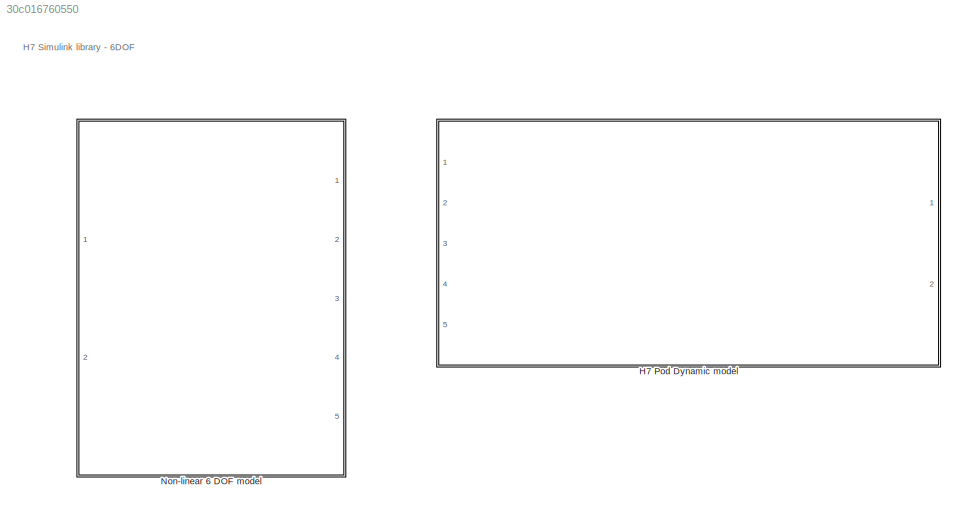
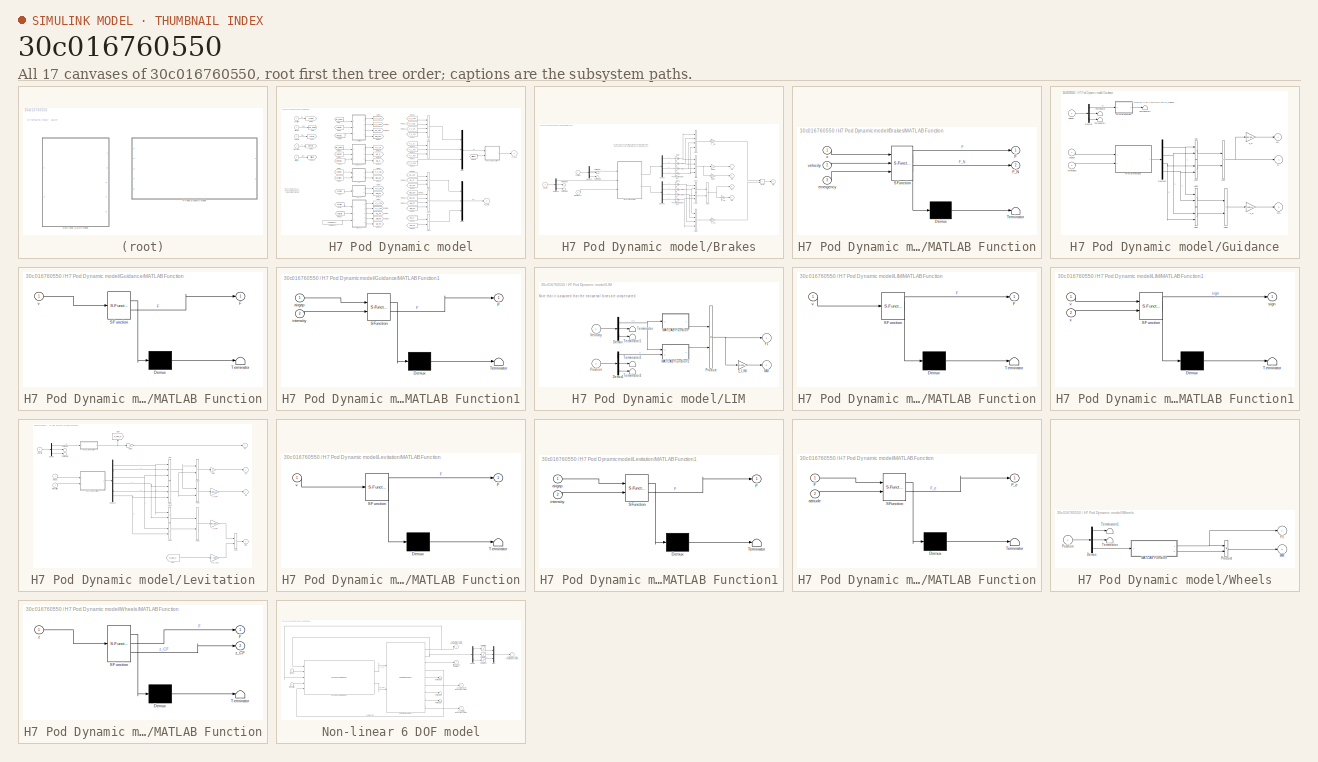
[diagram: thumbnail index - all 17 canvases of the model, root first then tree order]
MODEL slx_30c016760550
KIND library
CONFIG AbsTol = auto
CONFIG EnableMultiTasking = off
CONFIG FixedStep = auto
CONFIG MaxStep = auto
CONFIG MinStep = auto
CONFIG RelTol = 1e-3
CONFIG SampleTimeConstraint = Unconstrained
CONFIG SolverName = VariableStepAuto
CONFIG StartTime = 0.0
CONFIG StopTime = 10.0
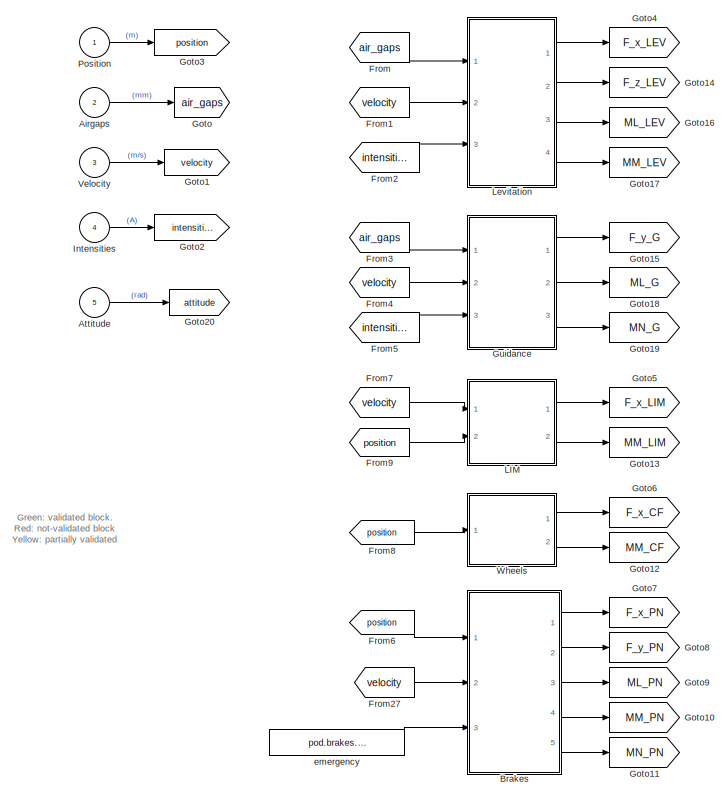
[diagram: H7 Pod Dynamic model - part 1/2, left side, full height]
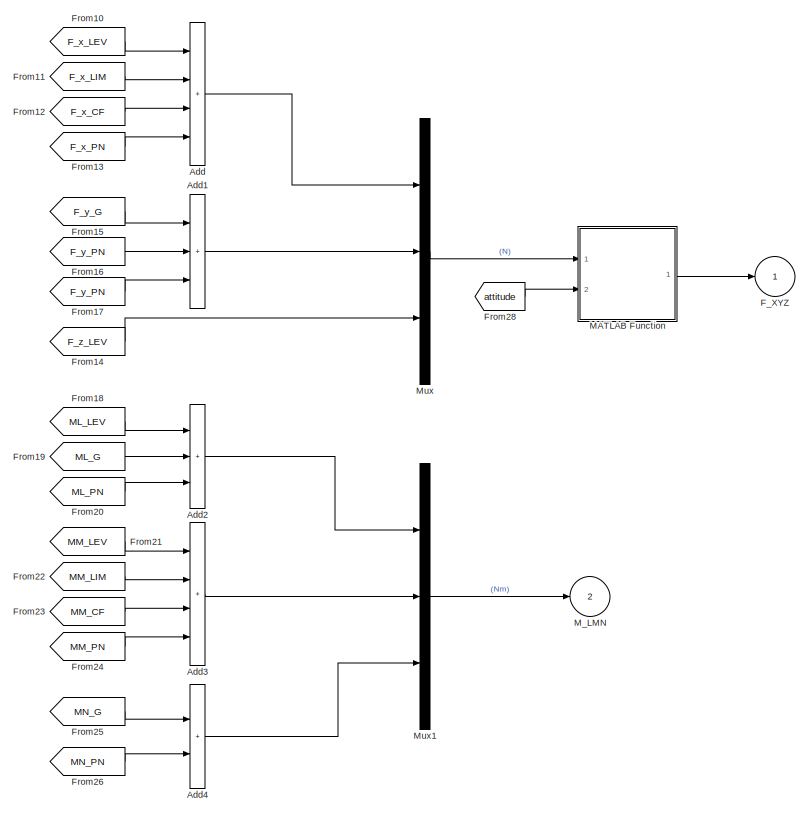
[diagram: H7 Pod Dynamic model - part 2/2, right side, full height]
BLOCK [SubSystem] H7 Pod Dynamic model
  Ports = [5, 2]
  RequestExecContextInheritance = off
BLOCK [Sum] H7 Pod Dynamic model/Add
  IconShape = rectangular
  Inputs = ++++
  Ports = [4, 1]
BLOCK [Sum] H7 Pod Dynamic model/Add1
  IconShape = rectangular
  Inputs = +++
  Ports = [3, 1]
BLOCK [Sum] H7 Pod Dynamic model/Add2
  IconShape = rectangular
  Inputs = +++
  Ports = [3, 1]
BLOCK [Sum] H7 Pod Dynamic model/Add3
  IconShape = rectangular
  Inputs = ++++
  Ports = [4, 1]
BLOCK [Sum] H7 Pod Dynamic model/Add4
  IconShape = rectangular
  Ports = [2, 1]
BLOCK [Inport] H7 Pod Dynamic model/Airgaps
  Port = 2
BLOCK [Inport] H7 Pod Dynamic model/Attitude
  Port = 5
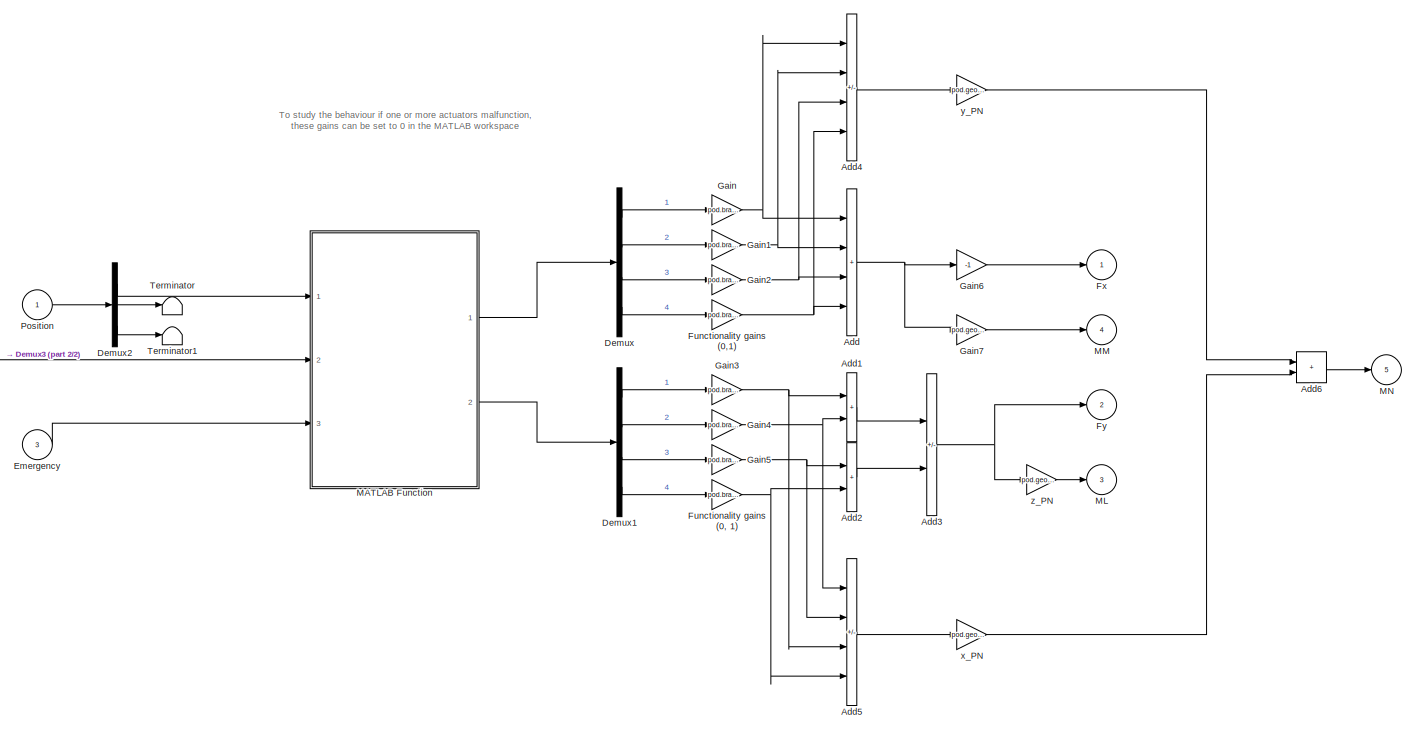
[diagram: H7 Pod Dynamic model/Brakes - part 1/2, most of the canvas]
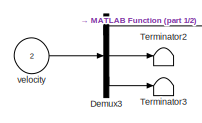
[diagram: H7 Pod Dynamic model/Brakes - part 2/2, middle left region]
BLOCK [SubSystem] H7 Pod Dynamic model/Brakes
  Ports = [3, 5]
  RequestExecContextInheritance = off
BLOCK [Sum] H7 Pod Dynamic model/Brakes/Add
  IconShape = rectangular
  Inputs = ++++
  Ports = [4, 1]
BLOCK [Sum] H7 Pod Dynamic model/Brakes/Add1
  IconShape = rectangular
  Ports = [2, 1]
BLOCK [Sum] H7 Pod Dynamic model/Brakes/Add2
  IconShape = rectangular
  Ports = [2, 1]
BLOCK [Sum] H7 Pod Dynamic model/Brakes/Add3
  IconShape = rectangular
  Inputs = +-
  Ports = [2, 1]
BLOCK [Sum] H7 Pod Dynamic model/Brakes/Add4
  IconShape = rectangular
  Inputs = ++--
  Ports = [4, 1]
BLOCK [Sum] H7 Pod Dynamic model/Brakes/Add5
  IconShape = rectangular
  Inputs = ++--
  Ports = [4, 1]
BLOCK [Sum] H7 Pod Dynamic model/Brakes/Add6
  IconShape = rectangular
  Ports = [2, 1]
BLOCK [Demux] H7 Pod Dynamic model/Brakes/Demux
  Ports = [1, 4]
BLOCK [Demux] H7 Pod Dynamic model/Brakes/Demux1
  Ports = [1, 4]
BLOCK [Demux] H7 Pod Dynamic model/Brakes/Demux2
  Outputs = 3
  Ports = [1, 3]
BLOCK [Demux] H7 Pod Dynamic model/Brakes/Demux3
  Outputs = 3
  Ports = [1, 3]
BLOCK [Inport] H7 Pod Dynamic model/Brakes/Emergency
  Port = 3
BLOCK [Gain] H7 Pod Dynamic model/Brakes/Functionality gains (0, 1)
  Gain = pod.brakes.working_actuators(4)
BLOCK [Gain] H7 Pod Dynamic model/Brakes/Functionality gains (0,1)
  Gain = pod.brakes.working_actuators(4)
BLOCK [Outport] H7 Pod Dynamic model/Brakes/Fx
BLOCK [Outport] H7 Pod Dynamic model/Brakes/Fy
  Port = 2
BLOCK [Gain] H7 Pod Dynamic model/Brakes/Gain
  Gain = pod.brakes.working_actuators(1)
BLOCK [Gain] H7 Pod Dynamic model/Brakes/Gain1
  Gain = pod.brakes.working_actuators(2)
BLOCK [Gain] H7 Pod Dynamic model/Brakes/Gain2
  Gain = pod.brakes.working_actuators(3)
BLOCK [Gain] H7 Pod Dynamic model/Brakes/Gain3
  Gain = pod.brakes.working_actuators(1)
BLOCK [Gain] H7 Pod Dynamic model/Brakes/Gain4
  Gain = pod.brakes.working_actuators(2)
BLOCK [Gain] H7 Pod Dynamic model/Brakes/Gain5
  Gain = pod.brakes.working_actuators(3)
BLOCK [Gain] H7 Pod Dynamic model/Brakes/Gain6
  Gain = -1
BLOCK [Gain] H7 Pod Dynamic model/Brakes/Gain7
  Gain = pod.geometry.z_PN
BLOCK [SubSystem] H7 Pod Dynamic model/Brakes/MATLAB Function
  ErrorFcn = Stateflow.Translate.translate
  PermitHierarchicalResolution = ExplicitOnly
  Ports = [3, 2]
  RequestExecContextInheritance = off
  SFBlockType = MATLAB Function
  TreatAsAtomicUnit = on
BLOCK [Demux] H7 Pod Dynamic model/Brakes/MATLAB Function/ Demux 
  Outputs = 1
  Ports = [1, 1]
BLOCK [S-Function] H7 Pod Dynamic model/Brakes/MATLAB Function/ SFunction 
  EnableBusSupport = on
  FunctionName = sf_sfun
  Parameters = pod
  PortCounts = [3 3]
  Ports = [3, 3]
  SFcnIsStateOwnerBlock = off
  SFunctionDeploymentMode = off
  Tag = Stateflow S-Function 11
BLOCK [Terminator] H7 Pod Dynamic model/Brakes/MATLAB Function/ Terminator 
BLOCK [Outport] H7 Pod Dynamic model/Brakes/MATLAB Function/F
BLOCK [Outport] H7 Pod Dynamic model/Brakes/MATLAB Function/F_N
  Port = 2
BLOCK [Inport] H7 Pod Dynamic model/Brakes/MATLAB Function/emergency
  Port = 3
BLOCK [Inport] H7 Pod Dynamic model/Brakes/MATLAB Function/velocity
  Port = 2
BLOCK [Inport] H7 Pod Dynamic model/Brakes/MATLAB Function/x
BLOCK [Outport] H7 Pod Dynamic model/Brakes/ML
  Port = 3
BLOCK [Outport] H7 Pod Dynamic model/Brakes/MM
  Port = 4
BLOCK [Outport] H7 Pod Dynamic model/Brakes/MN
  Port = 5
BLOCK [Inport] H7 Pod Dynamic model/Brakes/Position
BLOCK [Terminator] H7 Pod Dynamic model/Brakes/Terminator
BLOCK [Terminator] H7 Pod Dynamic model/Brakes/Terminator1
BLOCK [Terminator] H7 Pod Dynamic model/Brakes/Terminator2
BLOCK [Terminator] H7 Pod Dynamic model/Brakes/Terminator3
BLOCK [Inport] H7 Pod Dynamic model/Brakes/velocity
  Port = 2
BLOCK [Gain] H7 Pod Dynamic model/Brakes/x_PN
  Gain = pod.geometry.x_PN
BLOCK [Gain] H7 Pod Dynamic model/Brakes/y_PN
  Gain = pod.geometry.y_PN
BLOCK [Gain] H7 Pod Dynamic model/Brakes/z_PN
  Gain = pod.geometry.z_PN
BLOCK [Outport] H7 Pod Dynamic model/F_XYZ
BLOCK [From] H7 Pod Dynamic model/From
  GotoTag = air_gaps
BLOCK [From] H7 Pod Dynamic model/From1
  GotoTag = velocity
BLOCK [From] H7 Pod Dynamic model/From10
  GotoTag = F_x_LEV
BLOCK [From] H7 Pod Dynamic model/From11
  GotoTag = F_x_LIM
BLOCK [From] H7 Pod Dynamic model/From12
  GotoTag = F_x_CF
BLOCK [From] H7 Pod Dynamic model/From13
  GotoTag = F_x_PN
BLOCK [From] H7 Pod Dynamic model/From14
  GotoTag = F_z_LEV
BLOCK [From] H7 Pod Dynamic model/From15
  GotoTag = F_y_G
BLOCK [From] H7 Pod Dynamic model/From16
  GotoTag = F_y_PN
BLOCK [From] H7 Pod Dynamic model/From17
  GotoTag = F_y_PN
BLOCK [From] H7 Pod Dynamic model/From18
  GotoTag = ML_LEV
BLOCK [From] H7 Pod Dynamic model/From19
  GotoTag = ML_G
BLOCK [From] H7 Pod Dynamic model/From2
  GotoTag = intensities
BLOCK [From] H7 Pod Dynamic model/From20
  GotoTag = ML_PN
BLOCK [From] H7 Pod Dynamic model/From21
  GotoTag = MM_LEV
BLOCK [From] H7 Pod Dynamic model/From22
  GotoTag = MM_LIM
BLOCK [From] H7 Pod Dynamic model/From23
  GotoTag = MM_CF
BLOCK [From] H7 Pod Dynamic model/From24
  GotoTag = MM_PN
BLOCK [From] H7 Pod Dynamic model/From25
  GotoTag = MN_G
BLOCK [From] H7 Pod Dynamic model/From26
  GotoTag = MN_PN
BLOCK [From] H7 Pod Dynamic model/From27
  GotoTag = velocity
BLOCK [From] H7 Pod Dynamic model/From28
  GotoTag = attitude
BLOCK [From] H7 Pod Dynamic model/From3
  GotoTag = air_gaps
BLOCK [From] H7 Pod Dynamic model/From4
  GotoTag = velocity
BLOCK [From] H7 Pod Dynamic model/From5
  GotoTag = intensities
BLOCK [From] H7 Pod Dynamic model/From6
  GotoTag = position
BLOCK [From] H7 Pod Dynamic model/From7
  GotoTag = velocity
BLOCK [From] H7 Pod Dynamic model/From8
  GotoTag = position
BLOCK [From] H7 Pod Dynamic model/From9
  GotoTag = position
BLOCK [Goto] H7 Pod Dynamic model/Goto
  GotoTag = air_gaps
BLOCK [Goto] H7 Pod Dynamic model/Goto1
  GotoTag = velocity
BLOCK [Goto] H7 Pod Dynamic model/Goto10
  GotoTag = MM_PN
BLOCK [Goto] H7 Pod Dynamic model/Goto11
  GotoTag = MN_PN
BLOCK [Goto] H7 Pod Dynamic model/Goto12
  GotoTag = MM_CF
BLOCK [Goto] H7 Pod Dynamic model/Goto13
  GotoTag = MM_LIM
BLOCK [Goto] H7 Pod Dynamic model/Goto14
  GotoTag = F_z_LEV
BLOCK [Goto] H7 Pod Dynamic model/Goto15
  GotoTag = F_y_G
BLOCK [Goto] H7 Pod Dynamic model/Goto16
  GotoTag = ML_LEV
BLOCK [Goto] H7 Pod Dynamic model/Goto17
  GotoTag = MM_LEV
BLOCK [Goto] H7 Pod Dynamic model/Goto18
  GotoTag = ML_G
BLOCK [Goto] H7 Pod Dynamic model/Goto19
  GotoTag = MN_G
BLOCK [Goto] H7 Pod Dynamic model/Goto2
  GotoTag = intensities
BLOCK [Goto] H7 Pod Dynamic model/Goto20
  GotoTag = attitude
BLOCK [Goto] H7 Pod Dynamic model/Goto3
  GotoTag = position
BLOCK [Goto] H7 Pod Dynamic model/Goto4
  GotoTag = F_x_LEV
BLOCK [Goto] H7 Pod Dynamic model/Goto5
  GotoTag = F_x_LIM
BLOCK [Goto] H7 Pod Dynamic model/Goto6
  GotoTag = F_x_CF
BLOCK [Goto] H7 Pod Dynamic model/Goto7
  GotoTag = F_x_PN
BLOCK [Goto] H7 Pod Dynamic model/Goto8
  GotoTag = F_y_PN
BLOCK [Goto] H7 Pod Dynamic model/Goto9
  GotoTag = ML_PN
BLOCK [SubSystem] H7 Pod Dynamic model/Guidance
  Ports = [3, 3]
  RequestExecContextInheritance = off
BLOCK [Gain] H7 Pod Dynamic model/Guidance/- x_G
  Gain = - pod.geometry.x_G
BLOCK [Sum] H7 Pod Dynamic model/Guidance/Add
  IconShape = rectangular
  Ports = [2, 1]
BLOCK [Sum] H7 Pod Dynamic model/Guidance/Add1
  IconShape = rectangular
  Ports = [2, 1]
BLOCK [Sum] H7 Pod Dynamic model/Guidance/Add2
  IconShape = rectangular
  Inputs = +-
  Ports = [2, 1]
BLOCK [Sum] H7 Pod Dynamic model/Guidance/Add3
  IconShape = rectangular
  Ports = [2, 1]
BLOCK [Sum] H7 Pod Dynamic model/Guidance/Add4
  IconShape = rectangular
  Ports = [2, 1]
BLOCK [Sum] H7 Pod Dynamic model/Guidance/Add5
  IconShape = rectangular
  Inputs = +-
  Ports = [2, 1]
BLOCK [Inport] H7 Pod Dynamic model/Guidance/Airgaps
BLOCK [Demux] H7 Pod Dynamic model/Guidance/Demux
  Outputs = 3
  Ports = [1, 3]
BLOCK [Demux] H7 Pod Dynamic model/Guidance/Demux1
  Ports = [1, 4]
BLOCK [Outport] H7 Pod Dynamic model/Guidance/Fy
BLOCK [Inport] H7 Pod Dynamic model/Guidance/Intensities
  Port = 3
BLOCK [SubSystem] H7 Pod Dynamic model/Guidance/MATLAB Function
  ErrorFcn = Stateflow.Translate.translate
  PermitHierarchicalResolution = ExplicitOnly
  Ports = [1, 1]
  RequestExecContextInheritance = off
  SFBlockType = MATLAB Function
  TreatAsAtomicUnit = on
BLOCK [Demux] H7 Pod Dynamic model/Guidance/MATLAB Function/ Demux 
  Outputs = 1
  Ports = [1, 1]
BLOCK [S-Function] H7 Pod Dynamic model/Guidance/MATLAB Function/ SFunction 
  EnableBusSupport = on
  FunctionName = sf_sfun
  PortCounts = [1 2]
  Ports = [1, 2]
  SFcnIsStateOwnerBlock = off
  SFunctionDeploymentMode = off
  Tag = Stateflow S-Function 4
BLOCK [Terminator] H7 Pod Dynamic model/Guidance/MATLAB Function/ Terminator 
BLOCK [Outport] H7 Pod Dynamic model/Guidance/MATLAB Function/F
BLOCK [Inport] H7 Pod Dynamic model/Guidance/MATLAB Function/v
BLOCK [SubSystem] H7 Pod Dynamic model/Guidance/MATLAB Function1
  ErrorFcn = Stateflow.Translate.translate
  PermitHierarchicalResolution = ExplicitOnly
  Ports = [2, 1]
  RequestExecContextInheritance = off
  SFBlockType = MATLAB Function
  TreatAsAtomicUnit = on
BLOCK [Demux] H7 Pod Dynamic model/Guidance/MATLAB Function1/ Demux 
  Outputs = 1
  Ports = [1, 1]
BLOCK [S-Function] H7 Pod Dynamic model/Guidance/MATLAB Function1/ SFunction 
  EnableBusSupport = on
  FunctionName = sf_sfun
  Parameters = pod
  PortCounts = [2 2]
  Ports = [2, 2]
  SFcnIsStateOwnerBlock = off
  SFunctionDeploymentMode = off
  Tag = Stateflow S-Function 5
BLOCK [Terminator] H7 Pod Dynamic model/Guidance/MATLAB Function1/ Terminator 
BLOCK [Outport] H7 Pod Dynamic model/Guidance/MATLAB Function1/F
BLOCK [Inport] H7 Pod Dynamic model/Guidance/MATLAB Function1/airgap
BLOCK [Inport] H7 Pod Dynamic model/Guidance/MATLAB Function1/intensity
  Port = 2
BLOCK [Outport] H7 Pod Dynamic model/Guidance/ML
  Port = 2
BLOCK [Outport] H7 Pod Dynamic model/Guidance/MN
  Port = 3
BLOCK [Terminator] H7 Pod Dynamic model/Guidance/Terminator
BLOCK [Terminator] H7 Pod Dynamic model/Guidance/Terminator1
BLOCK [Terminator] H7 Pod Dynamic model/Guidance/Terminator2
BLOCK [Inport] H7 Pod Dynamic model/Guidance/Velocity
  Port = 2
BLOCK [Gain] H7 Pod Dynamic model/Guidance/z_G
  Gain = pod.geometry.z_G
BLOCK [Inport] H7 Pod Dynamic model/Intensities
  Port = 4
BLOCK [SubSystem] H7 Pod Dynamic model/LIM
  Ports = [2, 2]
  RequestExecContextInheritance = off
BLOCK [Demux] H7 Pod Dynamic model/LIM/Demux
  Outputs = 3
  Ports = [1, 3]
BLOCK [Demux] H7 Pod Dynamic model/LIM/Demux1
  Outputs = 3
  Ports = [1, 3]
BLOCK [Outport] H7 Pod Dynamic model/LIM/Fx
BLOCK [SubSystem] H7 Pod Dynamic model/LIM/MATLAB Function
  ErrorFcn = Stateflow.Translate.translate
  PermitHierarchicalResolution = ExplicitOnly
  Ports = [1, 1]
  RequestExecContextInheritance = off
  SFBlockType = MATLAB Function
  TreatAsAtomicUnit = on
BLOCK [Demux] H7 Pod Dynamic model/LIM/MATLAB Function/ Demux 
  Outputs = 1
  Ports = [1, 1]
BLOCK [S-Function] H7 Pod Dynamic model/LIM/MATLAB Function/ SFunction 
  EnableBusSupport = on
  FunctionName = sf_sfun
  Parameters = pod
  PortCounts = [1 2]
  Ports = [1, 2]
  SFcnIsStateOwnerBlock = off
  SFunctionDeploymentMode = off
  Tag = Stateflow S-Function 6
BLOCK [Terminator] H7 Pod Dynamic model/LIM/MATLAB Function/ Terminator 
BLOCK [Outport] H7 Pod Dynamic model/LIM/MATLAB Function/F
BLOCK [Inport] H7 Pod Dynamic model/LIM/MATLAB Function/v
BLOCK [SubSystem] H7 Pod Dynamic model/LIM/MATLAB Function1
  ErrorFcn = Stateflow.Translate.translate
  PermitHierarchicalResolution = ExplicitOnly
  Ports = [2, 1]
  RequestExecContextInheritance = off
  SFBlockType = MATLAB Function
  TreatAsAtomicUnit = on
BLOCK [Demux] H7 Pod Dynamic model/LIM/MATLAB Function1/ Demux 
  Outputs = 1
  Ports = [1, 1]
BLOCK [S-Function] H7 Pod Dynamic model/LIM/MATLAB Function1/ SFunction 
  EnableBusSupport = on
  FunctionName = sf_sfun
  Parameters = pod
  PortCounts = [2 2]
  Ports = [2, 2]
  SFcnIsStateOwnerBlock = off
  SFunctionDeploymentMode = off
  Tag = Stateflow S-Function 7
BLOCK [Terminator] H7 Pod Dynamic model/LIM/MATLAB Function1/ Terminator 
BLOCK [Outport] H7 Pod Dynamic model/LIM/MATLAB Function1/sign
BLOCK [Inport] H7 Pod Dynamic model/LIM/MATLAB Function1/v
BLOCK [Inport] H7 Pod Dynamic model/LIM/MATLAB Function1/x
  Port = 2
BLOCK [Outport] H7 Pod Dynamic model/LIM/MM
  Port = 2
BLOCK [Inport] H7 Pod Dynamic model/LIM/Position
  Port = 2
BLOCK [Product] H7 Pod Dynamic model/LIM/Product
  Ports = [2, 1]
BLOCK [Terminator] H7 Pod Dynamic model/LIM/Terminator
BLOCK [Terminator] H7 Pod Dynamic model/LIM/Terminator1
BLOCK [Terminator] H7 Pod Dynamic model/LIM/Terminator2
BLOCK [Terminator] H7 Pod Dynamic model/LIM/Terminator3
BLOCK [Inport] H7 Pod Dynamic model/LIM/Velocity
BLOCK [Gain] H7 Pod Dynamic model/LIM/z_LIM
  Gain = pod.geometry.z_LIM
BLOCK [SubSystem] H7 Pod Dynamic model/Levitation
  Ports = [3, 4]
  RequestExecContextInheritance = off
BLOCK [Gain] H7 Pod Dynamic model/Levitation/- y_LEV
  Gain = - pod.geometry.y_LEV
BLOCK [Gain] H7 Pod Dynamic model/Levitation/6 * z_LEV
  Gain = 6 * pod.geometry.z_LEV
BLOCK [Sum] H7 Pod Dynamic model/Levitation/Add
  IconShape = rectangular
  Inputs = +++
  Ports = [3, 1]
BLOCK [Sum] H7 Pod Dynamic model/Levitation/Add1
  IconShape = rectangular
  Inputs = +++
  Ports = [3, 1]
BLOCK [Sum] H7 Pod Dynamic model/Levitation/Add2
  IconShape = rectangular
  Ports = [2, 1]
BLOCK [Sum] H7 Pod Dynamic model/Levitation/Add3
  IconShape = rectangular
  Inputs = +-
  Ports = [2, 1]
BLOCK [Sum] H7 Pod Dynamic model/Levitation/Add4
  IconShape = rectangular
  Ports = [2, 1]
BLOCK [Sum] H7 Pod Dynamic model/Levitation/Add5
  IconShape = rectangular
  Ports = [2, 1]
BLOCK [Sum] H7 Pod Dynamic model/Levitation/Add6
  IconShape = rectangular
  Inputs = +-
  Ports = [2, 1]
BLOCK [Sum] H7 Pod Dynamic model/Levitation/Add7
  IconShape = rectangular
  Ports = [2, 1]
BLOCK [Inport] H7 Pod Dynamic model/Levitation/Airgaps
BLOCK [Demux] H7 Pod Dynamic model/Levitation/Demux
  Outputs = 3
  Ports = [1, 3]
BLOCK [Demux] H7 Pod Dynamic model/Levitation/Demux1
  Outputs = 6
  Ports = [1, 6]
BLOCK [From] H7 Pod Dynamic model/Levitation/From
  GotoTag = F_LEV_X
BLOCK [Outport] H7 Pod Dynamic model/Levitation/Fx
BLOCK [Outport] H7 Pod Dynamic model/Levitation/Fz
  Port = 2
BLOCK [Gain] H7 Pod Dynamic model/Levitation/Gain
  Gain = -1
BLOCK [Gain] H7 Pod Dynamic model/Levitation/Gain1
  Gain = -6
BLOCK [Goto] H7 Pod Dynamic model/Levitation/Goto
  GotoTag = F_LEV_X
  NameLocation = right
BLOCK [Inport] H7 Pod Dynamic model/Levitation/Intensities
  Port = 3
BLOCK [SubSystem] H7 Pod Dynamic model/Levitation/MATLAB Function
  ErrorFcn = Stateflow.Translate.translate
  PermitHierarchicalResolution = ExplicitOnly
  Ports = [1, 1]
  RequestExecContextInheritance = off
  SFBlockType = MATLAB Function
  TreatAsAtomicUnit = on
BLOCK [Demux] H7 Pod Dynamic model/Levitation/MATLAB Function/ Demux 
  Outputs = 1
  Ports = [1, 1]
BLOCK [S-Function] H7 Pod Dynamic model/Levitation/MATLAB Function/ SFunction 
  EnableBusSupport = on
  FunctionName = sf_sfun
  Parameters = pod
  PortCounts = [1 2]
  Ports = [1, 2]
  SFcnIsStateOwnerBlock = off
  SFunctionDeploymentMode = off
  Tag = Stateflow S-Function 1
BLOCK [Terminator] H7 Pod Dynamic model/Levitation/MATLAB Function/ Terminator 
BLOCK [Outport] H7 Pod Dynamic model/Levitation/MATLAB Function/F
BLOCK [Inport] H7 Pod Dynamic model/Levitation/MATLAB Function/v
BLOCK [SubSystem] H7 Pod Dynamic model/Levitation/MATLAB Function1
  ErrorFcn = Stateflow.Translate.translate
  PermitHierarchicalResolution = ExplicitOnly
  Ports = [2, 1]
  RequestExecContextInheritance = off
  SFBlockType = MATLAB Function
  TreatAsAtomicUnit = on
BLOCK [Demux] H7 Pod Dynamic model/Levitation/MATLAB Function1/ Demux 
  Outputs = 1
  Ports = [1, 1]
BLOCK [S-Function] H7 Pod Dynamic model/Levitation/MATLAB Function1/ SFunction 
  EnableBusSupport = on
  FunctionName = sf_sfun
  Parameters = pod
  PortCounts = [2 2]
  Ports = [2, 2]
  SFcnIsStateOwnerBlock = off
  SFunctionDeploymentMode = off
  Tag = Stateflow S-Function 3
BLOCK [Terminator] H7 Pod Dynamic model/Levitation/MATLAB Function1/ Terminator 
BLOCK [Outport] H7 Pod Dynamic model/Levitation/MATLAB Function1/F
BLOCK [Inport] H7 Pod Dynamic model/Levitation/MATLAB Function1/airgap
BLOCK [Inport] H7 Pod Dynamic model/Levitation/MATLAB Function1/intensity
  Port = 2
BLOCK [Outport] H7 Pod Dynamic model/Levitation/ML
  Port = 3
BLOCK [Outport] H7 Pod Dynamic model/Levitation/MM
  Port = 4
BLOCK [Terminator] H7 Pod Dynamic model/Levitation/Terminator
BLOCK [Terminator] H7 Pod Dynamic model/Levitation/Terminator1
BLOCK [Inport] H7 Pod Dynamic model/Levitation/Velocity
  Port = 2
BLOCK [Gain] H7 Pod Dynamic model/Levitation/x_LEV
  Gain = pod.geometry.x_LEV
BLOCK [SubSystem] H7 Pod Dynamic model/MATLAB Function
  ErrorFcn = Stateflow.Translate.translate
  PermitHierarchicalResolution = ExplicitOnly
  Ports = [2, 1]
  RequestExecContextInheritance = off
  SFBlockType = MATLAB Function
  TreatAsAtomicUnit = on
BLOCK [Demux] H7 Pod Dynamic model/MATLAB Function/ Demux 
  Outputs = 1
  Ports = [1, 1]
BLOCK [S-Function] H7 Pod Dynamic model/MATLAB Function/ SFunction 
  EnableBusSupport = off
  FunctionName = sf_sfun
  Parameters = pod
  PortCounts = [2 2]
  Ports = [2, 2]
  SFcnIsStateOwnerBlock = off
  SFunctionDeploymentMode = off
  Tag = Stateflow S-Function 2
BLOCK [Terminator] H7 Pod Dynamic model/MATLAB Function/ Terminator 
BLOCK [Inport] H7 Pod Dynamic model/MATLAB Function/F
BLOCK [Outport] H7 Pod Dynamic model/MATLAB Function/F_e
BLOCK [Inport] H7 Pod Dynamic model/MATLAB Function/attitude
  Port = 2
BLOCK [Outport] H7 Pod Dynamic model/M_LMN
  Port = 2
BLOCK [Mux] H7 Pod Dynamic model/Mux
  DisplayOption = bar
  Inputs = 3
  Ports = [3, 1]
BLOCK [Mux] H7 Pod Dynamic model/Mux1
  DisplayOption = bar
  Inputs = 3
  Ports = [3, 1]
BLOCK [Inport] H7 Pod Dynamic model/Position
BLOCK [Inport] H7 Pod Dynamic model/Velocity
  Port = 3
BLOCK [SubSystem] H7 Pod Dynamic model/Wheels
  Ports = [1, 2]
  RequestExecContextInheritance = off
BLOCK [Demux] H7 Pod Dynamic model/Wheels/Demux
  Outputs = 3
  Ports = [1, 3]
BLOCK [Outport] H7 Pod Dynamic model/Wheels/Fx
BLOCK [SubSystem] H7 Pod Dynamic model/Wheels/MATLAB Function
  ErrorFcn = Stateflow.Translate.translate
  PermitHierarchicalResolution = ExplicitOnly
  Ports = [1, 2]
  RequestExecContextInheritance = off
  SFBlockType = MATLAB Function
  TreatAsAtomicUnit = on
BLOCK [Demux] H7 Pod Dynamic model/Wheels/MATLAB Function/ Demux 
  Outputs = 1
  Ports = [1, 1]
BLOCK [S-Function] H7 Pod Dynamic model/Wheels/MATLAB Function/ SFunction 
  EnableBusSupport = on
  FunctionName = sf_sfun
  Parameters = pod
  PortCounts = [1 3]
  Ports = [1, 3]
  SFcnIsStateOwnerBlock = off
  SFunctionDeploymentMode = off
  Tag = Stateflow S-Function 8
BLOCK [Terminator] H7 Pod Dynamic model/Wheels/MATLAB Function/ Terminator 
BLOCK [Outport] H7 Pod Dynamic model/Wheels/MATLAB Function/F
BLOCK [Inport] H7 Pod Dynamic model/Wheels/MATLAB Function/z
BLOCK [Outport] H7 Pod Dynamic model/Wheels/MATLAB Function/z_CF
  Port = 2
BLOCK [Outport] H7 Pod Dynamic model/Wheels/MM
  Port = 2
BLOCK [Inport] H7 Pod Dynamic model/Wheels/Position
BLOCK [Product] H7 Pod Dynamic model/Wheels/Product
  Ports = [2, 1]
BLOCK [Terminator] H7 Pod Dynamic model/Wheels/Terminator
BLOCK [Terminator] H7 Pod Dynamic model/Wheels/Terminator1
BLOCK [Constant] H7 Pod Dynamic model/emergency
  Value = pod.brakes.emergency_flag
BLOCK [SubSystem] Non-linear 6 DOF model
  Ports = [2, 5]
  RequestExecContextInheritance = off
BLOCK [Reference] Non-linear 6 DOF model/6DOF (Euler Angles)  REF=shared6dof/6DOF (Euler Angles)
  Ports = [2, 9]
  SourceBlock = shared6dof/6DOF (Euler Angles)
  SourceProductBaseCode = AE,PW,DR,MT,UV,VE
  SourceType = 6DOF EoM (Body Axis)
BLOCK [Outport] Non-linear 6 DOF model/Acceleration (absolute coordinate system)
  Port = 3
BLOCK [Inport] Non-linear 6 DOF model/Airgaps
BLOCK [Outport] Non-linear 6 DOF model/Angular velocity (body-fixed coordinate system)
  Port = 5
BLOCK [Outport] Non-linear 6 DOF model/Attitude (Euler angles)
  Port = 4
BLOCK [Demux] Non-linear 6 DOF model/Demux
  Outputs = 3
  Ports = [1, 3]
BLOCK [Reference] Non-linear 6 DOF model/H7 Pod Dynamic model  REF=$bdroot/H7 Pod Dynamic model
  Ports = [5, 2]
  SourceBlock = $bdroot/H7 Pod Dynamic model
BLOCK [Inport] Non-linear 6 DOF model/Intensities
  Port = 2
BLOCK [Mux] Non-linear 6 DOF model/Mux
  DisplayOption = bar
  Inputs = 3
  Ports = [3, 1]
BLOCK [Outport] Non-linear 6 DOF model/Position (absolute coordinate system)
  Port = 2
BLOCK [Saturate] Non-linear 6 DOF model/Saturation
  LowerLimit = 0
  UpperLimit = 20
BLOCK [Saturate] Non-linear 6 DOF model/Saturation1
  LowerLimit = -0.002
  UpperLimit = 0.002
BLOCK [Saturate] Non-linear 6 DOF model/Saturation2
  LowerLimit = -0.011
  UpperLimit = 0
BLOCK [Terminator] Non-linear 6 DOF model/Terminator1
BLOCK [Terminator] Non-linear 6 DOF model/Terminator2
BLOCK [Terminator] Non-linear 6 DOF model/Terminator3
BLOCK [Outport] Non-linear 6 DOF model/Velocity (absolute coordinate system)
ANNOTATION (root): H7 Simulink library - 6DOF
ANNOTATION H7 Pod Dynamic model: Green: validated block. Red: not-validated block Yellow: partially validated
ANNOTATION H7 Pod Dynamic model/Brakes: To study the behaviour if one or more actuators malfunction, these gains can be set to 0 in the MATLAB workspace
ANNOTATION H7 Pod Dynamic model/Guidance: (Assumed to be 0 until more data is available)
ANNOTATION H7 Pod Dynamic model/LIM: Note that it is assumed that the transversal forces are compensated
LINE H7 Pod Dynamic model/Add1:1 -> H7 Pod Dynamic model/Mux:2
LINE H7 Pod Dynamic model/Add2:1 -> H7 Pod Dynamic model/Mux1:1
LINE H7 Pod Dynamic model/Add3:1 -> H7 Pod Dynamic model/Mux1:2
LINE H7 Pod Dynamic model/Add4:1 -> H7 Pod Dynamic model/Mux1:3
LINE H7 Pod Dynamic model/Add:1 -> H7 Pod Dynamic model/Mux:1
LINE H7 Pod Dynamic model/Airgaps:1 -> H7 Pod Dynamic model/Goto:1
LINE H7 Pod Dynamic model/Attitude:1 -> H7 Pod Dynamic model/Goto20:1
LINE H7 Pod Dynamic model/Brakes/Add1:1 -> H7 Pod Dynamic model/Brakes/Add3:1
LINE H7 Pod Dynamic model/Brakes/Add2:1 -> H7 Pod Dynamic model/Brakes/Add3:2
NET H7 Pod Dynamic model/Brakes/Add3:1 -> H7 Pod Dynamic model/Brakes/Fy:1, H7 Pod Dynamic model/Brakes/z_PN:1
LINE H7 Pod Dynamic model/Brakes/Add4:1 -> H7 Pod Dynamic model/Brakes/y_PN:1
LINE H7 Pod Dynamic model/Brakes/Add5:1 -> H7 Pod Dynamic model/Brakes/x_PN:1
LINE H7 Pod Dynamic model/Brakes/Add6:1 -> H7 Pod Dynamic model/Brakes/MN:1
NET H7 Pod Dynamic model/Brakes/Add:1 -> H7 Pod Dynamic model/Brakes/Gain6:1, H7 Pod Dynamic model/Brakes/Gain7:1
LINE H7 Pod Dynamic model/Brakes/Demux1:1 -> H7 Pod Dynamic model/Brakes/Gain3:1
LINE H7 Pod Dynamic model/Brakes/Demux1:2 -> H7 Pod Dynamic model/Brakes/Gain4:1
LINE H7 Pod Dynamic model/Brakes/Demux1:3 -> H7 Pod Dynamic model/Brakes/Gain5:1
LINE H7 Pod Dynamic model/Brakes/Demux1:4 -> H7 Pod Dynamic model/Brakes/Functionality gains (0, 1):1
LINE H7 Pod Dynamic model/Brakes/Demux2:1 -> H7 Pod Dynamic model/Brakes/MATLAB Function:1
LINE H7 Pod Dynamic model/Brakes/Demux2:2 -> H7 Pod Dynamic model/Brakes/Terminator:1
LINE H7 Pod Dynamic model/Brakes/Demux2:3 -> H7 Pod Dynamic model/Brakes/Terminator1:1
LINE H7 Pod Dynamic model/Brakes/Demux3:1 -> H7 Pod Dynamic model/Brakes/MATLAB Function:2
LINE H7 Pod Dynamic model/Brakes/Demux3:2 -> H7 Pod Dynamic model/Brakes/Terminator2:1
LINE H7 Pod Dynamic model/Brakes/Demux3:3 -> H7 Pod Dynamic model/Brakes/Terminator3:1
LINE H7 Pod Dynamic model/Brakes/Demux:1 -> H7 Pod Dynamic model/Brakes/Gain:1
LINE H7 Pod Dynamic model/Brakes/Demux:2 -> H7 Pod Dynamic model/Brakes/Gain1:1
LINE H7 Pod Dynamic model/Brakes/Demux:3 -> H7 Pod Dynamic model/Brakes/Gain2:1
LINE H7 Pod Dynamic model/Brakes/Demux:4 -> H7 Pod Dynamic model/Brakes/Functionality gains (0,1):1
LINE H7 Pod Dynamic model/Brakes/Emergency:1 -> H7 Pod Dynamic model/Brakes/MATLAB Function:3
NET H7 Pod Dynamic model/Brakes/Functionality gains (0, 1):1 -> H7 Pod Dynamic model/Brakes/Add2:2, H7 Pod Dynamic model/Brakes/Add5:4
NET H7 Pod Dynamic model/Brakes/Functionality gains (0,1):1 -> H7 Pod Dynamic model/Brakes/Add4:4, H7 Pod Dynamic model/Brakes/Add:4
NET H7 Pod Dynamic model/Brakes/Gain1:1 -> H7 Pod Dynamic model/Brakes/Add4:2, H7 Pod Dynamic model/Brakes/Add:2
NET H7 Pod Dynamic model/Brakes/Gain2:1 -> H7 Pod Dynamic model/Brakes/Add4:3, H7 Pod Dynamic model/Brakes/Add:3
NET H7 Pod Dynamic model/Brakes/Gain3:1 -> H7 Pod Dynamic model/Brakes/Add1:1, H7 Pod Dynamic model/Brakes/Add5:3
NET H7 Pod Dynamic model/Brakes/Gain4:1 -> H7 Pod Dynamic model/Brakes/Add1:2, H7 Pod Dynamic model/Brakes/Add5:1
NET H7 Pod Dynamic model/Brakes/Gain5:1 -> H7 Pod Dynamic model/Brakes/Add2:1, H7 Pod Dynamic model/Brakes/Add5:2
LINE H7 Pod Dynamic model/Brakes/Gain6:1 -> H7 Pod Dynamic model/Brakes/Fx:1
LINE H7 Pod Dynamic model/Brakes/Gain7:1 -> H7 Pod Dynamic model/Brakes/MM:1
NET H7 Pod Dynamic model/Brakes/Gain:1 -> H7 Pod Dynamic model/Brakes/Add4:1, H7 Pod Dynamic model/Brakes/Add:1
LINE H7 Pod Dynamic model/Brakes/MATLAB Function:1 -> H7 Pod Dynamic model/Brakes/Demux:1
LINE H7 Pod Dynamic model/Brakes/MATLAB Function:2 -> H7 Pod Dynamic model/Brakes/Demux1:1
LINE H7 Pod Dynamic model/Brakes/Position:1 -> H7 Pod Dynamic model/Brakes/Demux2:1
LINE H7 Pod Dynamic model/Brakes/velocity:1 -> H7 Pod Dynamic model/Brakes/Demux3:1
LINE H7 Pod Dynamic model/Brakes/x_PN:1 -> H7 Pod Dynamic model/Brakes/Add6:2
LINE H7 Pod Dynamic model/Brakes/y_PN:1 -> H7 Pod Dynamic model/Brakes/Add6:1
LINE H7 Pod Dynamic model/Brakes/z_PN:1 -> H7 Pod Dynamic model/Brakes/ML:1
LINE H7 Pod Dynamic model/Brakes:1 -> H7 Pod Dynamic model/Goto7:1
LINE H7 Pod Dynamic model/Brakes:2 -> H7 Pod Dynamic model/Goto8:1
LINE H7 Pod Dynamic model/Brakes:3 -> H7 Pod Dynamic model/Goto9:1
LINE H7 Pod Dynamic model/Brakes:4 -> H7 Pod Dynamic model/Goto10:1
LINE H7 Pod Dynamic model/Brakes:5 -> H7 Pod Dynamic model/Goto11:1
LINE H7 Pod Dynamic model/From10:1 -> H7 Pod Dynamic model/Add:1
LINE H7 Pod Dynamic model/From11:1 -> H7 Pod Dynamic model/Add:2
LINE H7 Pod Dynamic model/From12:1 -> H7 Pod Dynamic model/Add:3
LINE H7 Pod Dynamic model/From13:1 -> H7 Pod Dynamic model/Add:4
LINE H7 Pod Dynamic model/From14:1 -> H7 Pod Dynamic model/Mux:3
LINE H7 Pod Dynamic model/From15:1 -> H7 Pod Dynamic model/Add1:1
LINE H7 Pod Dynamic model/From16:1 -> H7 Pod Dynamic model/Add1:2
LINE H7 Pod Dynamic model/From17:1 -> H7 Pod Dynamic model/Add1:3
LINE H7 Pod Dynamic model/From18:1 -> H7 Pod Dynamic model/Add2:1
LINE H7 Pod Dynamic model/From19:1 -> H7 Pod Dynamic model/Add2:2
LINE H7 Pod Dynamic model/From1:1 -> H7 Pod Dynamic model/Levitation:2
LINE H7 Pod Dynamic model/From20:1 -> H7 Pod Dynamic model/Add2:3
LINE H7 Pod Dynamic model/From21:1 -> H7 Pod Dynamic model/Add3:1
LINE H7 Pod Dynamic model/From22:1 -> H7 Pod Dynamic model/Add3:2
LINE H7 Pod Dynamic model/From23:1 -> H7 Pod Dynamic model/Add3:3
LINE H7 Pod Dynamic model/From24:1 -> H7 Pod Dynamic model/Add3:4
LINE H7 Pod Dynamic model/From25:1 -> H7 Pod Dynamic model/Add4:1
LINE H7 Pod Dynamic model/From26:1 -> H7 Pod Dynamic model/Add4:2
LINE H7 Pod Dynamic model/From27:1 -> H7 Pod Dynamic model/Brakes:2
LINE H7 Pod Dynamic model/From28:1 -> H7 Pod Dynamic model/MATLAB Function:2
LINE H7 Pod Dynamic model/From2:1 -> H7 Pod Dynamic model/Levitation:3
LINE H7 Pod Dynamic model/From3:1 -> H7 Pod Dynamic model/Guidance:1
LINE H7 Pod Dynamic model/From4:1 -> H7 Pod Dynamic model/Guidance:2
LINE H7 Pod Dynamic model/From5:1 -> H7 Pod Dynamic model/Guidance:3
LINE H7 Pod Dynamic model/From6:1 -> H7 Pod Dynamic model/Brakes:1
LINE H7 Pod Dynamic model/From7:1 -> H7 Pod Dynamic model/LIM:1
LINE H7 Pod Dynamic model/From8:1 -> H7 Pod Dynamic model/Wheels:1
LINE H7 Pod Dynamic model/From9:1 -> H7 Pod Dynamic model/LIM:2
LINE H7 Pod Dynamic model/From:1 -> H7 Pod Dynamic model/Levitation:1
LINE H7 Pod Dynamic model/Guidance/- x_G:1 -> H7 Pod Dynamic model/Guidance/MN:1
LINE H7 Pod Dynamic model/Guidance/Add1:1 -> H7 Pod Dynamic model/Guidance/Add2:2
NET H7 Pod Dynamic model/Guidance/Add2:1 -> H7 Pod Dynamic model/Guidance/Fy:1, H7 Pod Dynamic model/Guidance/z_G:1
LINE H7 Pod Dynamic model/Guidance/Add3:1 -> H7 Pod Dynamic model/Guidance/Add5:1
LINE H7 Pod Dynamic model/Guidance/Add4:1 -> H7 Pod Dynamic model/Guidance/Add5:2
LINE H7 Pod Dynamic model/Guidance/Add5:1 -> H7 Pod Dynamic model/Guidance/- x_G:1
LINE H7 Pod Dynamic model/Guidance/Add:1 -> H7 Pod Dynamic model/Guidance/Add2:1
LINE H7 Pod Dynamic model/Guidance/Airgaps:1 -> H7 Pod Dynamic model/Guidance/MATLAB Function1:1
NET H7 Pod Dynamic model/Guidance/Demux1:1 -> H7 Pod Dynamic model/Guidance/Add3:1, H7 Pod Dynamic model/Guidance/Add:1
NET H7 Pod Dynamic model/Guidance/Demux1:2 -> H7 Pod Dynamic model/Guidance/Add4:1, H7 Pod Dynamic model/Guidance/Add:2
NET H7 Pod Dynamic model/Guidance/Demux1:3 -> H7 Pod Dynamic model/Guidance/Add1:1, H7 Pod Dynamic model/Guidance/Add4:2
NET H7 Pod Dynamic model/Guidance/Demux1:4 -> H7 Pod Dynamic model/Guidance/Add1:2, H7 Pod Dynamic model/Guidance/Add3:2
LINE H7 Pod Dynamic model/Guidance/Demux:1 -> H7 Pod Dynamic model/Guidance/MATLAB Function:1
LINE H7 Pod Dynamic model/Guidance/Demux:2 -> H7 Pod Dynamic model/Guidance/Terminator:1
LINE H7 Pod Dynamic model/Guidance/Demux:3 -> H7 Pod Dynamic model/Guidance/Terminator1:1
LINE H7 Pod Dynamic model/Guidance/Intensities:1 -> H7 Pod Dynamic model/Guidance/MATLAB Function1:2
LINE H7 Pod Dynamic model/Guidance/MATLAB Function1:1 -> H7 Pod Dynamic model/Guidance/Demux1:1
LINE H7 Pod Dynamic model/Guidance/MATLAB Function:1 -> H7 Pod Dynamic model/Guidance/Terminator2:1
LINE H7 Pod Dynamic model/Guidance/Velocity:1 -> H7 Pod Dynamic model/Guidance/Demux:1
LINE H7 Pod Dynamic model/Guidance/z_G:1 -> H7 Pod Dynamic model/Guidance/ML:1
LINE H7 Pod Dynamic model/Guidance:1 -> H7 Pod Dynamic model/Goto15:1
LINE H7 Pod Dynamic model/Guidance:2 -> H7 Pod Dynamic model/Goto18:1
LINE H7 Pod Dynamic model/Guidance:3 -> H7 Pod Dynamic model/Goto19:1
LINE H7 Pod Dynamic model/Intensities:1 -> H7 Pod Dynamic model/Goto2:1
LINE H7 Pod Dynamic model/LIM/Demux1:1 -> H7 Pod Dynamic model/LIM/MATLAB Function1:2
LINE H7 Pod Dynamic model/LIM/Demux1:2 -> H7 Pod Dynamic model/LIM/Terminator2:1
LINE H7 Pod Dynamic model/LIM/Demux1:3 -> H7 Pod Dynamic model/LIM/Terminator3:1
NET H7 Pod Dynamic model/LIM/Demux:1 -> H7 Pod Dynamic model/LIM/MATLAB Function1:1, H7 Pod Dynamic model/LIM/MATLAB Function:1
LINE H7 Pod Dynamic model/LIM/Demux:2 -> H7 Pod Dynamic model/LIM/Terminator:1
LINE H7 Pod Dynamic model/LIM/Demux:3 -> H7 Pod Dynamic model/LIM/Terminator1:1
LINE H7 Pod Dynamic model/LIM/MATLAB Function1:1 -> H7 Pod Dynamic model/LIM/Product:2
LINE H7 Pod Dynamic model/LIM/MATLAB Function:1 -> H7 Pod Dynamic model/LIM/Product:1
LINE H7 Pod Dynamic model/LIM/Position:1 -> H7 Pod Dynamic model/LIM/Demux1:1
NET H7 Pod Dynamic model/LIM/Product:1 -> H7 Pod Dynamic model/LIM/Fx:1, H7 Pod Dynamic model/LIM/z_LIM:1
LINE H7 Pod Dynamic model/LIM/Velocity:1 -> H7 Pod Dynamic model/LIM/Demux:1
LINE H7 Pod Dynamic model/LIM/z_LIM:1 -> H7 Pod Dynamic model/LIM/MM:1
LINE H7 Pod Dynamic model/LIM:1 -> H7 Pod Dynamic model/Goto5:1
LINE H7 Pod Dynamic model/LIM:2 -> H7 Pod Dynamic model/Goto13:1
LINE H7 Pod Dynamic model/Levitation/- y_LEV:1 -> H7 Pod Dynamic model/Levitation/ML:1
LINE H7 Pod Dynamic model/Levitation/6 * z_LEV:1 -> H7 Pod Dynamic model/Levitation/Add7:2
NET H7 Pod Dynamic model/Levitation/Add1:1 -> H7 Pod Dynamic model/Levitation/Add2:2, H7 Pod Dynamic model/Levitation/Add3:2
LINE H7 Pod Dynamic model/Levitation/Add2:1 -> H7 Pod Dynamic model/Levitation/Gain:1
LINE H7 Pod Dynamic model/Levitation/Add3:1 -> H7 Pod Dynamic model/Levitation/- y_LEV:1
LINE H7 Pod Dynamic model/Levitation/Add4:1 -> H7 Pod Dynamic model/Levitation/Add6:1
LINE H7 Pod Dynamic model/Levitation/Add5:1 -> H7 Pod Dynamic model/Levitation/Add6:2
LINE H7 Pod Dynamic model/Levitation/Add6:1 -> H7 Pod Dynamic model/Levitation/x_LEV:1
LINE H7 Pod Dynamic model/Levitation/Add7:1 -> H7 Pod Dynamic model/Levitation/MM:1
NET H7 Pod Dynamic model/Levitation/Add:1 -> H7 Pod Dynamic model/Levitation/Add2:1, H7 Pod Dynamic model/Levitation/Add3:1
LINE H7 Pod Dynamic model/Levitation/Airgaps:1 -> H7 Pod Dynamic model/Levitation/MATLAB Function1:1
NET H7 Pod Dynamic model/Levitation/Demux1:1 -> H7 Pod Dynamic model/Levitation/Add4:1, H7 Pod Dynamic model/Levitation/Add:1
LINE H7 Pod Dynamic model/Levitation/Demux1:2 -> H7 Pod Dynamic model/Levitation/Add:2
NET H7 Pod Dynamic model/Levitation/Demux1:3 -> H7 Pod Dynamic model/Levitation/Add5:1, H7 Pod Dynamic model/Levitation/Add:3
NET H7 Pod Dynamic model/Levitation/Demux1:4 -> H7 Pod Dynamic model/Levitation/Add1:1, H7 Pod Dynamic model/Levitation/Add4:2
LINE H7 Pod Dynamic model/Levitation/Demux1:5 -> H7 Pod Dynamic model/Levitation/Add1:2
NET H7 Pod Dynamic model/Levitation/Demux1:6 -> H7 Pod Dynamic model/Levitation/Add1:3, H7 Pod Dynamic model/Levitation/Add5:2
LINE H7 Pod Dynamic model/Levitation/Demux:1 -> H7 Pod Dynamic model/Levitation/MATLAB Function:1
LINE H7 Pod Dynamic model/Levitation/Demux:2 -> H7 Pod Dynamic model/Levitation/Terminator:1
LINE H7 Pod Dynamic model/Levitation/Demux:3 -> H7 Pod Dynamic model/Levitation/Terminator1:1
LINE H7 Pod Dynamic model/Levitation/From:1 -> H7 Pod Dynamic model/Levitation/6 * z_LEV:1
LINE H7 Pod Dynamic model/Levitation/Gain1:1 -> H7 Pod Dynamic model/Levitation/Fx:1
LINE H7 Pod Dynamic model/Levitation/Gain:1 -> H7 Pod Dynamic model/Levitation/Fz:1
LINE H7 Pod Dynamic model/Levitation/Intensities:1 -> H7 Pod Dynamic model/Levitation/MATLAB Function1:2
LINE H7 Pod Dynamic model/Levitation/MATLAB Function1:1 -> H7 Pod Dynamic model/Levitation/Demux1:1
NET H7 Pod Dynamic model/Levitation/MATLAB Function:1 -> H7 Pod Dynamic model/Levitation/Gain1:1, H7 Pod Dynamic model/Levitation/Goto:1
LINE H7 Pod Dynamic model/Levitation/Velocity:1 -> H7 Pod Dynamic model/Levitation/Demux:1
LINE H7 Pod Dynamic model/Levitation/x_LEV:1 -> H7 Pod Dynamic model/Levitation/Add7:1
LINE H7 Pod Dynamic model/Levitation:1 -> H7 Pod Dynamic model/Goto4:1
LINE H7 Pod Dynamic model/Levitation:2 -> H7 Pod Dynamic model/Goto14:1
LINE H7 Pod Dynamic model/Levitation:3 -> H7 Pod Dynamic model/Goto16:1
LINE H7 Pod Dynamic model/Levitation:4 -> H7 Pod Dynamic model/Goto17:1
LINE H7 Pod Dynamic model/MATLAB Function:1 -> H7 Pod Dynamic model/F_XYZ:1
LINE H7 Pod Dynamic model/Mux1:1 -> H7 Pod Dynamic model/M_LMN:1
LINE H7 Pod Dynamic model/Mux:1 -> H7 Pod Dynamic model/MATLAB Function:1
LINE H7 Pod Dynamic model/Position:1 -> H7 Pod Dynamic model/Goto3:1
LINE H7 Pod Dynamic model/Velocity:1 -> H7 Pod Dynamic model/Goto1:1
LINE H7 Pod Dynamic model/Wheels/Demux:1 -> H7 Pod Dynamic model/Wheels/Terminator1:1
LINE H7 Pod Dynamic model/Wheels/Demux:2 -> H7 Pod Dynamic model/Wheels/Terminator:1
LINE H7 Pod Dynamic model/Wheels/Demux:3 -> H7 Pod Dynamic model/Wheels/MATLAB Function:1
NET H7 Pod Dynamic model/Wheels/MATLAB Function:1 -> H7 Pod Dynamic model/Wheels/Fx:1, H7 Pod Dynamic model/Wheels/Product:1
LINE H7 Pod Dynamic model/Wheels/MATLAB Function:2 -> H7 Pod Dynamic model/Wheels/Product:2
LINE H7 Pod Dynamic model/Wheels/Position:1 -> H7 Pod Dynamic model/Wheels/Demux:1
LINE H7 Pod Dynamic model/Wheels/Product:1 -> H7 Pod Dynamic model/Wheels/MM:1
LINE H7 Pod Dynamic model/Wheels:1 -> H7 Pod Dynamic model/Goto6:1
LINE H7 Pod Dynamic model/Wheels:2 -> H7 Pod Dynamic model/Goto12:1
LINE H7 Pod Dynamic model/emergency:1 -> H7 Pod Dynamic model/Brakes:3
NET Non-linear 6 DOF model/6DOF (Euler Angles):1 -> Non-linear 6 DOF model/H7 Pod Dynamic model:3, Non-linear 6 DOF model/Velocity (absolute coordinate system):1
NET Non-linear 6 DOF model/6DOF (Euler Angles):2 -> Non-linear 6 DOF model/Demux:1, Non-linear 6 DOF model/H7 Pod Dynamic model:1
LINE Non-linear 6 DOF model/6DOF (Euler Angles):3 -> Non-linear 6 DOF model/Attitude (Euler angles):1
LINE Non-linear 6 DOF model/6DOF (Euler Angles):4 -> Non-linear 6 DOF model/H7 Pod Dynamic model:5
LINE Non-linear 6 DOF model/6DOF (Euler Angles):5 -> Non-linear 6 DOF model/Terminator3:1
LINE Non-linear 6 DOF model/6DOF (Euler Angles):6 -> Non-linear 6 DOF model/Angular velocity (body-fixed coordinate system):1
LINE Non-linear 6 DOF model/6DOF (Euler Angles):7 -> Non-linear 6 DOF model/Terminator2:1
LINE Non-linear 6 DOF model/6DOF (Euler Angles):8 -> Non-linear 6 DOF model/Terminator1:1
LINE Non-linear 6 DOF model/6DOF (Euler Angles):9 -> Non-linear 6 DOF model/Acceleration (absolute coordinate system):1
LINE Non-linear 6 DOF model/Airgaps:1 -> Non-linear 6 DOF model/H7 Pod Dynamic model:2
LINE Non-linear 6 DOF model/Demux:1 -> Non-linear 6 DOF model/Saturation:1
LINE Non-linear 6 DOF model/Demux:2 -> Non-linear 6 DOF model/Saturation1:1
LINE Non-linear 6 DOF model/Demux:3 -> Non-linear 6 DOF model/Saturation2:1
LINE Non-linear 6 DOF model/H7 Pod Dynamic model:1 -> Non-linear 6 DOF model/6DOF (Euler Angles):1
LINE Non-linear 6 DOF model/H7 Pod Dynamic model:2 -> Non-linear 6 DOF model/6DOF (Euler Angles):2
LINE Non-linear 6 DOF model/Intensities:1 -> Non-linear 6 DOF model/H7 Pod Dynamic model:4
LINE Non-linear 6 DOF model/Mux:1 -> Non-linear 6 DOF model/Position (absolute coordinate system):1
LINE Non-linear 6 DOF model/Saturation1:1 -> Non-linear 6 DOF model/Mux:2
LINE Non-linear 6 DOF model/Saturation2:1 -> Non-linear 6 DOF model/Mux:3
LINE Non-linear 6 DOF model/Saturation:1 -> Non-linear 6 DOF model/Mux:1
note: NET lines group one-source signal fan-out (src -> all destinations, sorted); 1:1 wires keep LINE
CHART H7 Pod Dynamic model/Levitation/MATLAB Function states=1 transitions=1
  STATE_LABEL 'eML_blk_kernel()'
  STATE_LABEL 'SCRIPT:\nfunction F = HEMSdrag(v, pod)\n% Computes the drag force (N) of one HEMS unit as a function of the \n% velocity (m/s)\n% ═════════════════════════════════════════════════════════════════════════\n% Last updated: 15.12.2021\n% ═════════════════════════════════════════════════════════════════════════\n\nF = pod.levitation.drag_1_unit.poly.p3*v^3 + ...\n    pod.levitation.drag_1_unit.poly.p2*v^2 + .....<+92ch>'
CHART H7 Pod Dynamic model/MATLAB Function states=1 transitions=1
  STATE_LABEL 'eML_blk_kernel()'
  STATE_LABEL "SCRIPT:\nfunction F_e = BF2E(F, attitude, pod)\n% Computes the total force in absoute axis\n% ═════════════════════════════════════════════════════════════════════════\n% Last updated: 27.12.2021\n% ═════════════════════════════════════════════════════════════════════════\nF     = reshape(F, [3 1]);\n\n\nF_e = attitude * F + pod.mass.mass * [0 0 9.81]';"
CHART H7 Pod Dynamic model/Levitation/MATLAB Function1 states=1 transitions=1
  STATE_LABEL 'eML_blk_kernel()'
  STATE_LABEL 'SCRIPT:\nfunction F = HEMSlev(airgap, intensity, pod)\n% Computes the levitation force (N) of all the HEMS units as a function of \n% their air gaps (mm) and intensities (A)\n% ═════════════════════════════════════════════════════════════════════════\n% Last updated: 15.12.2021\n% ════════════════════════════════════════════════════════════════════════\n\nx   = airgap(1:6);\ny   = intensity(1:6);\n\nF = pod....<+406ch>'
CHART H7 Pod Dynamic model/Guidance/MATLAB Function states=1 transitions=1
  STATE_LABEL 'eML_blk_kernel()'
  STATE_LABEL 'SCRIPT:\nfunction F = EMSdrag(v)\n% Computes the drag force (N) of one EMS units as a function of \n% its velocity (m/s)\n% ═════════════════════════════════════════════════════════════════════════\n% Last updated: 15.12.2021\n% ════════════════════════════════════════════════════════════════════════\n\nF = 0;'
CHART H7 Pod Dynamic model/Guidance/MATLAB Function1 states=1 transitions=1
  STATE_LABEL 'eML_blk_kernel()'
  STATE_LABEL 'SCRIPT:\nfunction F = EMSlev(airgap, intensity, pod)\n% Computes the levitation force (N) of all the EMS units as a function of \n% their air gaps (mm) and intensities (A)\n% ═════════════════════════════════════════════════════════════════════════\n% Last updated: 15.12.2021\n% ════════════════════════════════════════════════════════════════════════\n\nx   = airgap(7:10);\ny   = intensity(7:10);\n\nF = pod....<+314ch>'
CHART H7 Pod Dynamic model/LIM/MATLAB Function states=1 transitions=1
  STATE_LABEL 'eML_blk_kernel()'
  STATE_LABEL 'SCRIPT:\nfunction F = LIMtraction(v, pod)\n% Computes the traction force (N) of the LIM as a function of \n% the absolute velocity of the prototype (m/s)\n% ═════════════════════════════════════════════════════════════════════════\n% Last updated: 20.12.2021\n% ═════════════════════════════════════════════════════════════════════════\n\nF = pod.propulsion.poly.p3*v^3 + ...\n    pod.propulsion.poly.p2*v^2 +...<+69ch>'
CHART H7 Pod Dynamic model/LIM/MATLAB Function1 states=1 transitions=1
  STATE_LABEL 'eML_blk_kernel()'
  STATE_LABEL 'SCRIPT:\nfunction sign = LIMdirection(v, x, pod)\n% Decides if the LIM force is being applied to accelerate or to brake \n% by comparing the position of the pod with a predefined treshold\n% ═════════════════════════════════════════════════════════════════════════\n% Last updated: 20.12.2021\n% ═════════════════════════════════════════════════════════════════════════\n\nif x >= pod.brakes.d && v > 0    \n ...<+85ch>'
CHART H7 Pod Dynamic model/Wheels/MATLAB Function states=1 transitions=1
  STATE_LABEL 'eML_blk_kernel()'
  STATE_LABEL 'SCRIPT:\nfunction [F, z_CF] = rollingFriction(z, pod)\n% Computes the rolling resistance force (N) of the wheels. It distinguishes\n% 3 cases: \n%   (1) z = 0. Pod touching the ground\n%   (2) z = z_max. Pod touching the ceiling. It is assumed no current\n%   applied to the HEMS. \n%   (3) Otherwise. Pod levitating. \n% ═════════════════════════════════════════════════════════════════════════\n% Last updat...<+920ch>'
CHART H7 Pod Dynamic model/Brakes/MATLAB Function states=1 transitions=1
  STATE_LABEL 'eML_blk_kernel()'
  STATE_LABEL 'SCRIPT:\nfunction [F, F_N] = brakes_activation(x, velocity, emergency, pod)\n% Computes the braking force of the pneumatic actuators if and only if \n%     (1) The emergency flag has been raised\n%     (2) The pod is above the acceleration phase distance\n% ═════════════════════════════════════════════════════════════════════════\n% Last updated: 20.12.2021\n% ════════════════════════════════════════════...<+291ch>'
CHART  states=0 transitions=0
CHART  states=0 transitions=0
CHART  states=0 transitions=0
CHART  states=0 transitions=0
CHART  states=0 transitions=0
CHART  states=0 transitions=0
CHART  states=0 transitions=0
CHART  states=0 transitions=0
CHART  states=0 transitions=0
